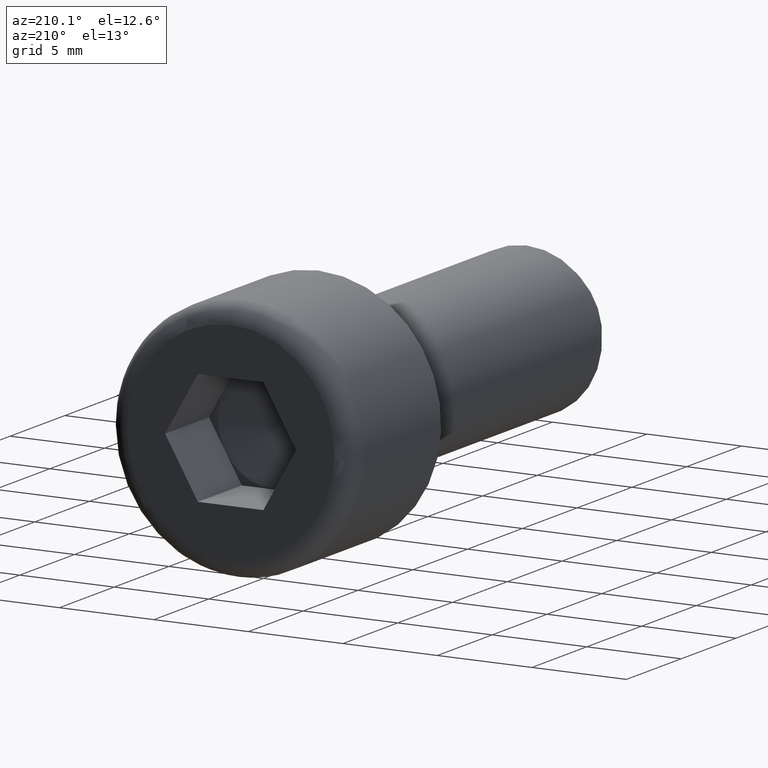
[diagram: clean part render]
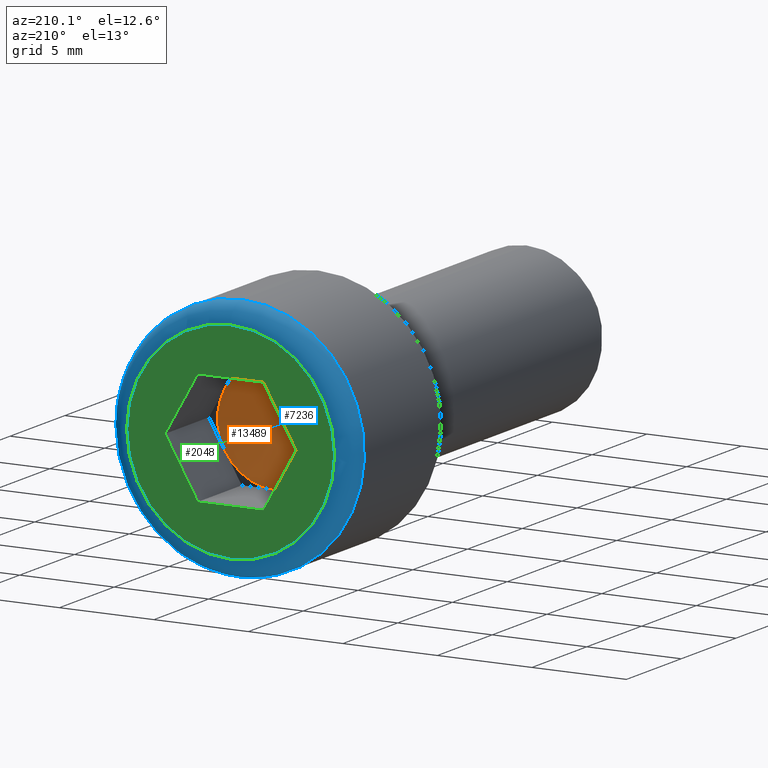
[diagram: same view with three faces highlighted in distinct colors, each labeled with its STEP entity id]
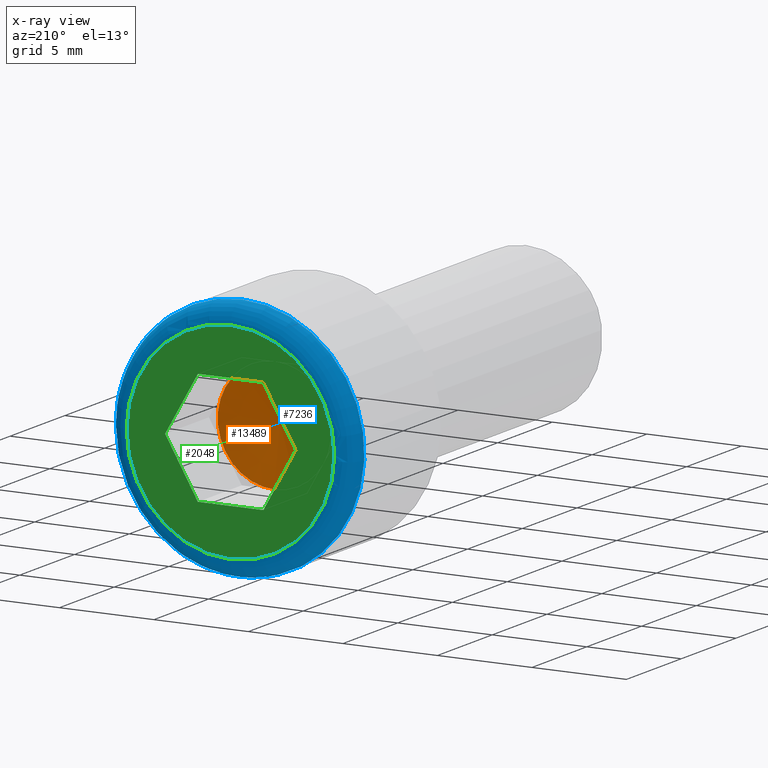
[diagram: x-ray of the same camera — body ghosted, the three highlighted faces saturated]
A machine part, auxiliary view with three faces highlighted in distinct colors.
The next image is the same camera in x-ray (body ghosted, the three faces saturated) — at least one of them is partly hidden behind the body in this view.
Their STEP definitions:

[orange] entity #13489 — the highlighted conical surface has half-angle 80.538 deg.
#465 = CARTESIAN_POINT ( 'NONE',  ( -1.577455839459496000E-016, 3.999999999999998200, 0.0000000000000000000 ) ) ;
#1181 = CARTESIAN_POINT ( 'NONE',  ( 2.598076211353315600, 3.999999999999999100, -1.500000000000000900 ) ) ;
#1250 = AXIS2_PLACEMENT_3D ( 'NONE', #465, #8118, #3028 ) ;
#1561 = DIRECTION ( 'NONE',  ( -1.000000000000000000, -2.891205793294678300E-016, 0.0000000000000000000 ) ) ;
#2054 = CARTESIAN_POINT ( 'NONE',  ( 2.598076211353316000, 3.999999999999999100, 1.500000000000000900 ) ) ;
#2173 = CARTESIAN_POINT ( 'NONE',  ( -1.577455839459496000E-016, 3.999999999999998200, 3.000000000000000000 ) ) ;
#2794 = CIRCLE ( 'NONE', #10473, 3.000000000000000000 ) ;
#2822 = CARTESIAN_POINT ( 'NONE',  ( -1.577455839459496000E-016, 3.999999999999998200, 0.0000000000000000000 ) ) ;
#2862 = DIRECTION ( 'NONE',  ( -1.000000000000000000, -2.891205793294678300E-016, 0.0000000000000000000 ) ) ;
#2909 = CIRCLE ( 'NONE', #1250, 3.000000000000000000 ) ;
#2969 = DIRECTION ( 'NONE',  ( -3.154911678919006400E-016, 1.000000000000000000, -0.0000000000000000000 ) ) ;
#3028 = DIRECTION ( 'NONE',  ( -1.000000000000000000, -2.891205793294678300E-016, 0.0000000000000000000 ) ) ;
#3344 = ORIENTED_EDGE ( 'NONE', *, *, #6115, .T. ) ;
#3366 = EDGE_CURVE ( 'NONE', #4436, #7509, #12111, .T. ) ;
#3568 = DIRECTION ( 'NONE',  ( -1.000000000000000000, -2.891205793294678300E-016, 0.0000000000000000000 ) ) ;
#4002 = CARTESIAN_POINT ( 'NONE',  ( -1.577455839459496000E-016, 3.999999999999998200, 0.0000000000000000000 ) ) ;
#4108 = CARTESIAN_POINT ( 'NONE',  ( -2.598076211353315600, 3.999999999999997300, 1.500000000000000200 ) ) ;
#4182 = DIRECTION ( 'NONE',  ( -3.154911678919006400E-016, 1.000000000000000000, -0.0000000000000000000 ) ) ;
#4379 = EDGE_CURVE ( 'NONE', #12227, #13454, #10192, .T. ) ;
#4436 = VERTEX_POINT ( 'NONE', #7763 ) ;
#4932 = CARTESIAN_POINT ( 'NONE',  ( -1.577455839459496000E-016, 3.999999999999998200, 0.0000000000000000000 ) ) ;
#5945 = ORIENTED_EDGE ( 'NONE', *, *, #3366, .T. ) ;
#6115 = EDGE_CURVE ( 'NONE', #10827, #12227, #2794, .T. ) ;
#6131 = CARTESIAN_POINT ( 'NONE',  ( -3.154911678919006500E-013, 1003.500000000000100, 0.0000000000000000000 ) ) ;
#6312 = ORIENTED_EDGE ( 'NONE', *, *, #12096, .T. ) ;
#6412 = DIRECTION ( 'NONE',  ( -3.154911678919006400E-016, 1.000000000000000000, -0.0000000000000000000 ) ) ;
#7509 = VERTEX_POINT ( 'NONE', #12091 ) ;
#7742 = CIRCLE ( 'NONE', #10305, 3.000000000000000000 ) ;
#7763 = CARTESIAN_POINT ( 'NONE',  ( -5.333242336302395600E-016, 3.999999999999998200, -3.000000000000000000 ) ) ;
#7924 = CARTESIAN_POINT ( 'NONE',  ( -1.577455839459496000E-016, 3.999999999999998200, 0.0000000000000000000 ) ) ;
#8009 = CARTESIAN_POINT ( 'NONE',  ( -1.577455839459496000E-016, 3.999999999999998200, 0.0000000000000000000 ) ) ;
#8118 = DIRECTION ( 'NONE',  ( -3.154911678919006400E-016, 1.000000000000000000, -0.0000000000000000000 ) ) ;
#8924 = ORIENTED_EDGE ( 'NONE', *, *, #4379, .T. ) ;
#9112 = DIRECTION ( 'NONE',  ( -1.000000000000000000, -2.891205793294678300E-016, 0.0000000000000000000 ) ) ;
#10017 = DIRECTION ( 'NONE',  ( -1.000000000000000000, -2.891205793294678300E-016, 0.0000000000000000000 ) ) ;
#10192 = CIRCLE ( 'NONE', #10357, 3.000000000000000000 ) ;
#10250 = ORIENTED_EDGE ( 'NONE', *, *, #10463, .T. ) ;
#10286 = AXIS2_PLACEMENT_3D ( 'NONE', #8009, #12773, #1561 ) ;
#10305 = AXIS2_PLACEMENT_3D ( 'NONE', #4002, #2969, #2862 ) ;
#10357 = AXIS2_PLACEMENT_3D ( 'NONE', #2822, #6412, #10017 ) ;
#10463 = EDGE_CURVE ( 'NONE', #11428, #4436, #14551, .T. ) ;
#10473 = AXIS2_PLACEMENT_3D ( 'NONE', #7924, #4182, #9112 ) ;
#10508 = EDGE_LOOP ( 'NONE', ( #3344, #8924, #6312, #10250, #5945, #13552 ) ) ;
#10827 = VERTEX_POINT ( 'NONE', #4108 ) ;
#10980 = DIRECTION ( 'NONE',  ( -3.154911678919006400E-016, 1.000000000000000000, -0.0000000000000000000 ) ) ;
#11101 = DIRECTION ( 'NONE',  ( -3.154911678919006400E-016, 1.000000000000000000, -0.0000000000000000000 ) ) ;
#11428 = VERTEX_POINT ( 'NONE', #1181 ) ;
#11609 = CONICAL_SURFACE ( 'NONE', #13087, 6000.000000000028200, 1.405647649380270500 ) ;
#12091 = CARTESIAN_POINT ( 'NONE',  ( -2.598076211353315600, 3.999999999999997300, -1.499999999999999800 ) ) ;
#12096 = EDGE_CURVE ( 'NONE', #13454, #11428, #2909, .T. ) ;
#12111 = CIRCLE ( 'NONE', #12216, 3.000000000000000000 ) ;
#12216 = AXIS2_PLACEMENT_3D ( 'NONE', #4932, #10980, #3568 ) ;
#12227 = VERTEX_POINT ( 'NONE', #2173 ) ;
#12385 = FACE_OUTER_BOUND ( 'NONE', #10508, .T. ) ;
#12773 = DIRECTION ( 'NONE',  ( -3.154911678919006400E-016, 1.000000000000000000, -0.0000000000000000000 ) ) ;
#13087 = AXIS2_PLACEMENT_3D ( 'NONE', #6131, #11101, #13576 ) ;
#13454 = VERTEX_POINT ( 'NONE', #2054 ) ;
#13489 = ADVANCED_FACE ( 'NONE', ( #12385 ), #11609, .F. ) ;
#13552 = ORIENTED_EDGE ( 'NONE', *, *, #14049, .T. ) ;
#13576 = DIRECTION ( 'NONE',  ( -1.000000000000000000, -3.330669073875453800E-016, 0.0000000000000000000 ) ) ;
#14049 = EDGE_CURVE ( 'NONE', #7509, #10827, #7742, .T. ) ;
#14551 = CIRCLE ( 'NONE', #10286, 3.000000000000000000 ) ;

[blue] entity #7236 — the highlighted toroidal blend (fillet) surface has major radius 5.5 mm and minor (blend) radius 1 mm.
#1683 = VERTEX_POINT ( 'NONE', #15591 ) ;
#3006 = AXIS2_PLACEMENT_3D ( 'NONE', #13398, #15846, #14712 ) ;
#4191 = CARTESIAN_POINT ( 'NONE',  ( 0.0000000000000000000, 7.000000000000000000, 0.0000000000000000000 ) ) ;
#4232 = DIRECTION ( 'NONE',  ( 0.0000000000000000000, 1.000000000000000000, 0.0000000000000000000 ) ) ;
#5396 = EDGE_CURVE ( 'NONE', #10595, #10595, #11728, .T. ) ;
#5717 = AXIS2_PLACEMENT_3D ( 'NONE', #11645, #4232, #11702 ) ;
#7098 = ORIENTED_EDGE ( 'NONE', *, *, #5396, .F. ) ;
#7203 = ORIENTED_EDGE ( 'NONE', *, *, #9680, .F. ) ;
#7236 = ADVANCED_FACE ( 'NONE', ( #7443, #12862 ), #8225, .T. ) ;
#7443 = FACE_OUTER_BOUND ( 'NONE', #12791, .T. ) ;
#8225 = TOROIDAL_SURFACE ( 'NONE', #5717, 5.500000000000000900, 1.000000000000000000 ) ;
#9680 = EDGE_CURVE ( 'NONE', #1683, #1683, #12646, .T. ) ;
#10595 = VERTEX_POINT ( 'NONE', #11873 ) ;
#10787 = AXIS2_PLACEMENT_3D ( 'NONE', #4191, #11604, #15436 ) ;
#11604 = DIRECTION ( 'NONE',  ( -0.0000000000000000000, -1.000000000000000000, -0.0000000000000000000 ) ) ;
#11645 = CARTESIAN_POINT ( 'NONE',  ( 0.0000000000000000000, 7.000000000000000000, 0.0000000000000000000 ) ) ;
#11702 = DIRECTION ( 'NONE',  ( 0.0000000000000000000, 0.0000000000000000000, 1.000000000000000000 ) ) ;
#11728 = CIRCLE ( 'NONE', #3006, 5.500000000000000900 ) ;
#11781 = EDGE_LOOP ( 'NONE', ( #7098 ) ) ;
#11873 = CARTESIAN_POINT ( 'NONE',  ( 0.0000000000000000000, 8.000000000000000000, 5.500000000000000900 ) ) ;
#12646 = CIRCLE ( 'NONE', #10787, 6.500000000000000900 ) ;
#12791 = EDGE_LOOP ( 'NONE', ( #7203 ) ) ;
#12862 = FACE_OUTER_BOUND ( 'NONE', #11781, .T. ) ;
#13398 = CARTESIAN_POINT ( 'NONE',  ( 0.0000000000000000000, 8.000000000000000000, 0.0000000000000000000 ) ) ;
#14712 = DIRECTION ( 'NONE',  ( 0.0000000000000000000, 0.0000000000000000000, 1.000000000000000000 ) ) ;
#15436 = DIRECTION ( 'NONE',  ( 0.0000000000000000000, 0.0000000000000000000, 1.000000000000000000 ) ) ;
#15591 = CARTESIAN_POINT ( 'NONE',  ( 0.0000000000000000000, 7.000000000000000000, 6.500000000000000900 ) ) ;
#15846 = DIRECTION ( 'NONE',  ( 0.0000000000000000000, 1.000000000000000000, 0.0000000000000000000 ) ) ;

[green] entity #2048 — the highlighted planar face has unit normal (0, 1, 0).
#233 = VERTEX_POINT ( 'NONE', #10873 ) ;
#574 = EDGE_LOOP ( 'NONE', ( #7303, #12947, #2543, #6789, #3484, #8175 ) ) ;
#1236 = CARTESIAN_POINT ( 'NONE',  ( 3.464101615137755300, 8.000000000000000000, 8.032070669435346800E-016 ) ) ;
#1301 = CARTESIAN_POINT ( 'NONE',  ( -1.732050807568877400, 8.000000000000000000, -2.999999999999999600 ) ) ;
#1416 = CARTESIAN_POINT ( 'NONE',  ( -1.732050807568877400, 8.000000000000000000, -2.999999999999999600 ) ) ;
#1790 = VERTEX_POINT ( 'NONE', #2339 ) ;
#1897 = VECTOR ( 'NONE', #13649, 1000.000000000000200 ) ;
#2048 = ADVANCED_FACE ( 'NONE', ( #11779, #2059 ), #5430, .T. ) ;
#2059 = FACE_OUTER_BOUND ( 'NONE', #8636, .T. ) ;
#2339 = CARTESIAN_POINT ( 'NONE',  ( 3.464101615137755300, 8.000000000000000000, 8.032070669435346800E-016 ) ) ;
#2543 = ORIENTED_EDGE ( 'NONE', *, *, #14986, .F. ) ;
#2791 = DIRECTION ( 'NONE',  ( -1.000000000000000000, 0.0000000000000000000, 1.251928832280966200E-016 ) ) ;
#3006 = AXIS2_PLACEMENT_3D ( 'NONE', #13398, #15846, #14712 ) ;
#3076 = DIRECTION ( 'NONE',  ( 1.000000000000000000, 0.0000000000000000000, 0.0000000000000000000 ) ) ;
#3484 = ORIENTED_EDGE ( 'NONE', *, *, #8778, .F. ) ;
#3794 = VECTOR ( 'NONE', #2791, 1000.000000000000000 ) ;
#4026 = AXIS2_PLACEMENT_3D ( 'NONE', #5744, #5640, #11802 ) ;
#4224 = EDGE_CURVE ( 'NONE', #9558, #8008, #7079, .T. ) ;
#4450 = CARTESIAN_POINT ( 'NONE',  ( -1.732050807568876100, 8.000000000000000000, 3.000000000000000000 ) ) ;
#4564 = ORIENTED_EDGE ( 'NONE', *, *, #5396, .T. ) ;
#5396 = EDGE_CURVE ( 'NONE', #10595, #10595, #11728, .T. ) ;
#5398 = CARTESIAN_POINT ( 'NONE',  ( 1.732050807568876300, 8.000000000000000000, -3.000000000000000000 ) ) ;
#5430 = PLANE ( 'NONE',  #4026 ) ;
#5640 = DIRECTION ( 'NONE',  ( 0.0000000000000000000, 1.000000000000000000, 0.0000000000000000000 ) ) ;
#5744 = CARTESIAN_POINT ( 'NONE',  ( 0.0000000000000000000, 8.000000000000000000, 0.0000000000000000000 ) ) ;
#6298 = VERTEX_POINT ( 'NONE', #4450 ) ;
#6789 = ORIENTED_EDGE ( 'NONE', *, *, #4224, .F. ) ;
#7079 = LINE ( 'NONE', #15295, #3794 ) ;
#7129 = LINE ( 'NONE', #12870, #13927 ) ;
#7303 = ORIENTED_EDGE ( 'NONE', *, *, #14257, .F. ) ;
#8008 = VERTEX_POINT ( 'NONE', #1301 ) ;
#8109 = VECTOR ( 'NONE', #10430, 1000.000000000000200 ) ;
#8175 = ORIENTED_EDGE ( 'NONE', *, *, #14661, .F. ) ;
#8357 = VECTOR ( 'NONE', #13027, 1000.000000000000200 ) ;
#8636 = EDGE_LOOP ( 'NONE', ( #4564 ) ) ;
#8778 = EDGE_CURVE ( 'NONE', #1790, #9558, #12461, .T. ) ;
#9558 = VERTEX_POINT ( 'NONE', #5398 ) ;
#9894 = LINE ( 'NONE', #11893, #8357 ) ;
#9904 = DIRECTION ( 'NONE',  ( -0.5000000000000002200, 0.0000000000000000000, -0.8660254037844384900 ) ) ;
#10430 = DIRECTION ( 'NONE',  ( 0.5000000000000001100, 0.0000000000000000000, -0.8660254037844384900 ) ) ;
#10595 = VERTEX_POINT ( 'NONE', #11873 ) ;
#10830 = EDGE_CURVE ( 'NONE', #233, #6298, #9894, .T. ) ;
#10873 = CARTESIAN_POINT ( 'NONE',  ( -3.464101615137754400, 8.000000000000000000, -4.440650973077132600E-016 ) ) ;
#11728 = CIRCLE ( 'NONE', #3006, 5.500000000000000900 ) ;
#11779 = FACE_BOUND ( 'NONE', #574, .T. ) ;
#11802 = DIRECTION ( 'NONE',  ( 0.0000000000000000000, -0.0000000000000000000, 1.000000000000000000 ) ) ;
#11873 = CARTESIAN_POINT ( 'NONE',  ( 0.0000000000000000000, 8.000000000000000000, 5.500000000000000900 ) ) ;
#11893 = CARTESIAN_POINT ( 'NONE',  ( -3.464101615137754400, 8.000000000000000000, -4.440650973077132600E-016 ) ) ;
#12461 = LINE ( 'NONE', #1236, #14566 ) ;
#12515 = VERTEX_POINT ( 'NONE', #15243 ) ;
#12870 = CARTESIAN_POINT ( 'NONE',  ( -1.732050807568876100, 8.000000000000000000, 3.000000000000000000 ) ) ;
#12947 = ORIENTED_EDGE ( 'NONE', *, *, #10830, .F. ) ;
#13027 = DIRECTION ( 'NONE',  ( 0.5000000000000001100, 0.0000000000000000000, 0.8660254037844384900 ) ) ;
#13398 = CARTESIAN_POINT ( 'NONE',  ( 0.0000000000000000000, 8.000000000000000000, 0.0000000000000000000 ) ) ;
#13649 = DIRECTION ( 'NONE',  ( -0.5000000000000000000, 0.0000000000000000000, 0.8660254037844386000 ) ) ;
#13927 = VECTOR ( 'NONE', #3076, 1000.000000000000000 ) ;
#14257 = EDGE_CURVE ( 'NONE', #6298, #12515, #7129, .T. ) ;
#14566 = VECTOR ( 'NONE', #9904, 1000.000000000000200 ) ;
#14661 = EDGE_CURVE ( 'NONE', #12515, #1790, #15073, .T. ) ;
#14712 = DIRECTION ( 'NONE',  ( 0.0000000000000000000, 0.0000000000000000000, 1.000000000000000000 ) ) ;
#14986 = EDGE_CURVE ( 'NONE', #8008, #233, #15454, .T. ) ;
#15073 = LINE ( 'NONE', #15350, #8109 ) ;
#15243 = CARTESIAN_POINT ( 'NONE',  ( 1.732050807568877900, 8.000000000000000000, 3.000000000000000000 ) ) ;
#15295 = CARTESIAN_POINT ( 'NONE',  ( 1.732050807568876300, 8.000000000000000000, -3.000000000000000000 ) ) ;
#15350 = CARTESIAN_POINT ( 'NONE',  ( 1.732050807568877600, 8.000000000000000000, 3.000000000000000000 ) ) ;
#15454 = LINE ( 'NONE', #1416, #1897 ) ;
#15846 = DIRECTION ( 'NONE',  ( 0.0000000000000000000, 1.000000000000000000, 0.0000000000000000000 ) ) ;